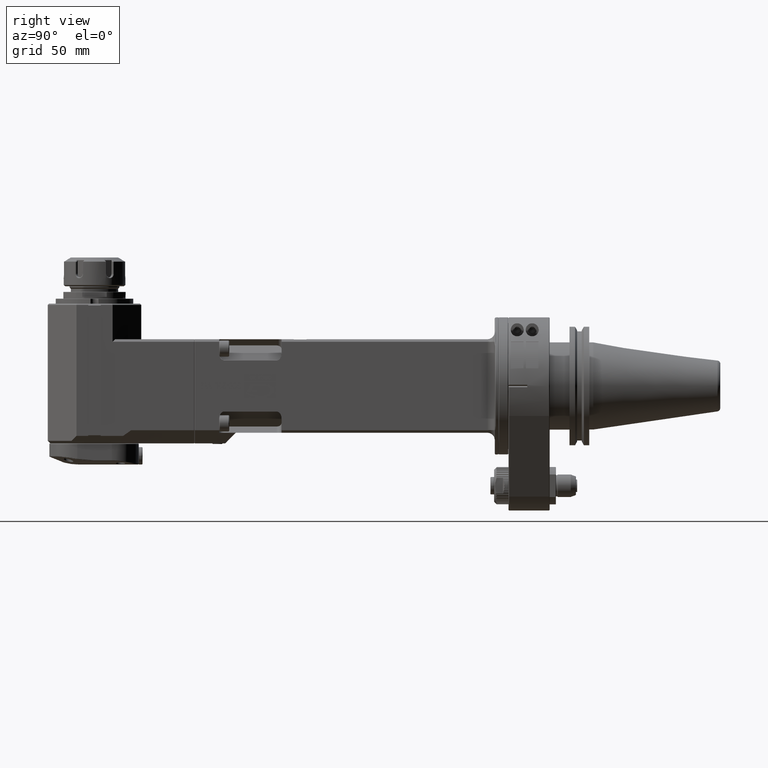
[diagram: clean part render]
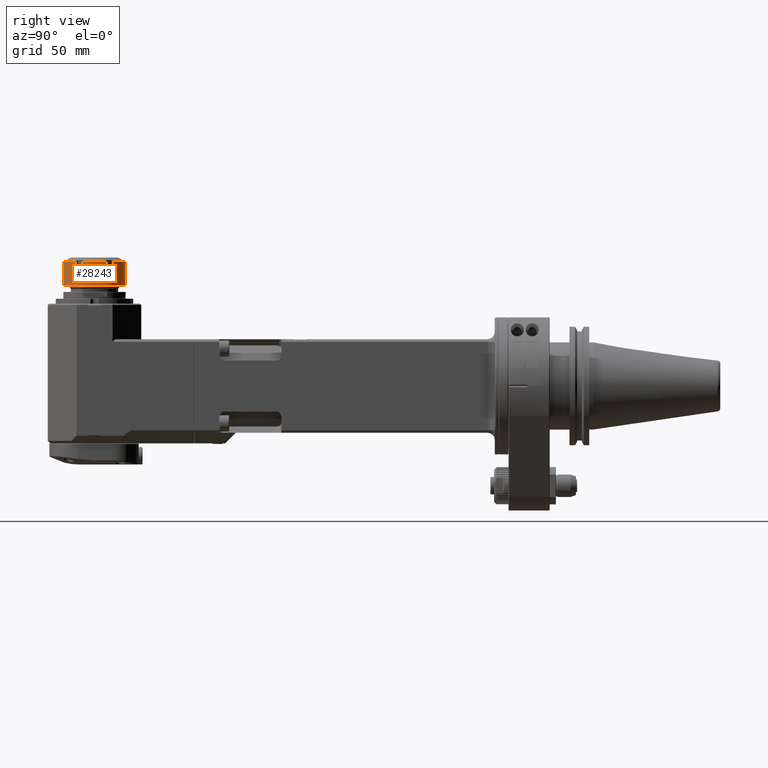
[diagram: same view with one face highlighted and labeled with its STEP entity id]
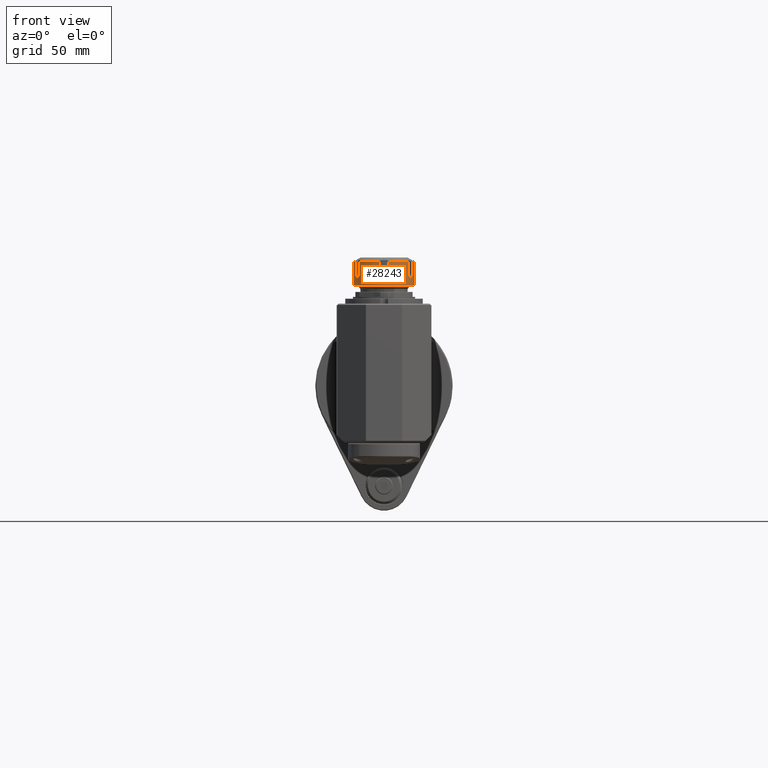
[diagram: same view with one face highlighted and labeled with its STEP entity id]
A machine part, right view. The second image highlights one B-rep face of the part: STEP entity #28243.
A second angle (front view) of the same face is appended — the face is thin or edge-on in the first view.
In plain terms, the highlighted cylindrical surface (bore or boss wall) has radius 24.75 mm, axis along (0, 0, 1).
Its self-contained STEP definition (entity closure, byte-faithful):
#1302=B_SPLINE_CURVE_WITH_KNOTS('',3,(#57710,#57711,#57712,#57713,#57714,
#57715,#57716,#57717,#57718,#57719,#57720,#57721,#57722,#57723),
 .UNSPECIFIED.,.F.,.F.,(4,2,2,2,2,2,4),(1.08117991773986E-5,0.0714550031949095,
0.143731660558789,0.281933908590943,0.417914567572308,0.488154144730129,
0.556395842160567),.UNSPECIFIED.);
#1303=B_SPLINE_CURVE_WITH_KNOTS('',3,(#57728,#57729,#57730,#57731,#57732,
#57733,#57734,#57735,#57736,#57737,#57738,#57739,#57740,#57741,#57742,#57743,
#57744,#57745,#57746,#57747,#57748,#57749,#57750,#57751,#57752,#57753,#57754,
#57755,#57756,#57757),.UNSPECIFIED.,.F.,.F.,(4,2,2,2,2,2,2,2,2,2,2,2,2,
2,4),(2.31044208487752E-5,0.0750965316578001,0.153176953119631,0.205977229873932,
0.33293243219741,0.450713446640844,0.509679836159503,0.539197310397559,
0.657347117770113,0.716276687798445,0.774295064828856,0.827003187331308,
0.865929901995463,0.922680304160387,0.976571143480738),.UNSPECIFIED.);
#1304=B_SPLINE_CURVE_WITH_KNOTS('',3,(#57762,#57763,#57764,#57765,#57766,
#57767,#57768,#57769,#57770,#57771,#57772,#57773,#57774,#57775,#57776,#57777,
#57778,#57779,#57780,#57781,#57782,#57783,#57784,#57785),.UNSPECIFIED.,
 .F.,.F.,(4,2,2,2,2,2,2,2,2,2,2,4),(3.51901291948002E-5,0.0993938228027501,
0.208283318229033,0.280508259210708,0.451522319272047,0.685521907531227,
0.749119690235134,0.875507973858565,1.13004688614784,1.38136350526778,1.54080833025789,
1.69311672722739),.UNSPECIFIED.);
#1305=B_SPLINE_CURVE_WITH_KNOTS('',3,(#57790,#57791,#57792,#57793,#57794,
#57795,#57796,#57797,#57798,#57799,#57800,#57801,#57802,#57803),
 .UNSPECIFIED.,.F.,.F.,(4,2,2,2,2,2,4),(1.61317725231968E-5,0.0679565794477623,
0.137885094723914,0.27343630561683,0.411126489499445,0.482978196946605,
0.553956708058748),.UNSPECIFIED.);
#1306=B_SPLINE_CURVE_WITH_KNOTS('',3,(#57810,#57811,#57812,#57813,#57814,
#57815,#57816,#57817,#57818,#57819,#57820,#57821,#57822,#57823),
 .UNSPECIFIED.,.F.,.F.,(4,2,2,2,2,2,4),(1.08117991712602E-5,0.0714550031951196,
0.143731660559478,0.281933908592442,0.417914567574454,0.488154144731115,
0.556395842138673),.UNSPECIFIED.);
#1307=B_SPLINE_CURVE_WITH_KNOTS('',3,(#57828,#57829,#57830,#57831,#57832,
#57833,#57834,#57835,#57836,#57837,#57838,#57839,#57840,#57841,#57842,#57843,
#57844,#57845,#57846,#57847,#57848,#57849,#57850,#57851,#57852,#57853,#57854,
#57855,#57856,#57857),.UNSPECIFIED.,.F.,.F.,(4,2,2,2,2,2,2,2,2,2,2,2,2,
2,4),(2.31044208594471E-5,0.075096531660213,0.153176953124476,0.205977229881311,
0.332932432217393,0.450713446708684,0.509679836254041,0.539197310505675,
0.657347117937465,0.716276687991518,0.774295065046826,0.827003187568827,
0.865929902247778,0.922680304434578,0.976571143775866),.UNSPECIFIED.);
#1308=B_SPLINE_CURVE_WITH_KNOTS('',3,(#57860,#57861,#57862,#57863,#57864,
#57865,#57866,#57867,#57868,#57869,#57870,#57871,#57872,#57873,#57874,#57875,
#57876,#57877,#57878,#57879,#57880,#57881,#57882,#57883),.UNSPECIFIED.,
 .F.,.F.,(4,2,2,2,2,2,2,2,2,2,2,4),(3.51901291982167E-5,0.0993938228012359,
0.208283318227728,0.280508259210555,0.451522319274656,0.685521907546854,
0.749119690257179,0.875507973892865,1.13004688620668,1.38136350535114,1.54080833035604,
1.69311672733968),.UNSPECIFIED.);
#1309=B_SPLINE_CURVE_WITH_KNOTS('',3,(#57887,#57888,#57889,#57890,#57891,
#57892,#57893,#57894,#57895,#57896,#57897,#57898,#57899,#57900),
 .UNSPECIFIED.,.F.,.F.,(4,2,2,2,2,2,4),(1.61317725195946E-5,0.067956579447742,
0.137885094723653,0.273436305617017,0.411126489500731,0.482978196948306,
0.553956708060517),.UNSPECIFIED.);
#2619=CIRCLE('',#30853,24.75);
#2620=CIRCLE('',#30854,24.75);
#2621=CIRCLE('',#30855,24.75);
#2622=CIRCLE('',#30856,24.75);
#2623=CIRCLE('',#30857,24.75);
#2624=CIRCLE('',#30858,24.75);
#2626=CIRCLE('',#30864,24.75);
#2627=CIRCLE('',#30865,24.75);
#3048=CYLINDRICAL_SURFACE('',#30863,24.75);
#4474=FACE_OUTER_BOUND('',#6248,.T.);
#6248=EDGE_LOOP('',(#24968,#24969,#24970,#24971,#24972,#24973,#24974,#24975,
#24976,#24977,#24978,#24979,#24980,#24981,#24982,#24983,#24984,#24985,#24986,
#24987,#24988,#24989,#24990,#24991,#24992,#24993,#24994,#24995,#24996,#24997));
#8458=LINE('',#57706,#10655);
#8459=LINE('',#57724,#10656);
#8460=LINE('',#57726,#10657);
#8461=LINE('',#57758,#10658);
#8462=LINE('',#57760,#10659);
#8463=LINE('',#57786,#10660);
#8464=LINE('',#57788,#10661);
#8465=LINE('',#57805,#10662);
#8466=LINE('',#57824,#10663);
#8467=LINE('',#57826,#10664);
#8468=LINE('',#57858,#10665);
#8469=LINE('',#57884,#10666);
#8470=LINE('',#57886,#10667);
#10655=VECTOR('',#37778,10.);
#10656=VECTOR('',#37781,10.);
#10657=VECTOR('',#37782,10.);
#10658=VECTOR('',#37783,10.);
#10659=VECTOR('',#37784,10.);
#10660=VECTOR('',#37785,10.);
#10661=VECTOR('',#37786,10.);
#10662=VECTOR('',#37787,24.75);
#10663=VECTOR('',#37792,10.);
#10664=VECTOR('',#37793,10.);
#10665=VECTOR('',#37794,10.);
#10666=VECTOR('',#37795,10.);
#10667=VECTOR('',#37796,10.);
#13231=VERTEX_POINT('',#57371);
#13232=VERTEX_POINT('',#57375);
#13237=VERTEX_POINT('',#57404);
#13238=VERTEX_POINT('',#57408);
#13243=VERTEX_POINT('',#57439);
#13244=VERTEX_POINT('',#57443);
#13250=VERTEX_POINT('',#57477);
#13251=VERTEX_POINT('',#57481);
#13256=VERTEX_POINT('',#57510);
#13257=VERTEX_POINT('',#57514);
#13262=VERTEX_POINT('',#57545);
#13263=VERTEX_POINT('',#57549);
#13275=VERTEX_POINT('',#57704);
#13276=VERTEX_POINT('',#57708);
#13277=VERTEX_POINT('',#57709);
#13278=VERTEX_POINT('',#57725);
#13279=VERTEX_POINT('',#57727);
#13280=VERTEX_POINT('',#57759);
#13281=VERTEX_POINT('',#57761);
#13282=VERTEX_POINT('',#57787);
#13283=VERTEX_POINT('',#57789);
#13284=VERTEX_POINT('',#57804);
#13285=VERTEX_POINT('',#57806);
#13286=VERTEX_POINT('',#57809);
#13287=VERTEX_POINT('',#57825);
#13288=VERTEX_POINT('',#57827);
#13289=VERTEX_POINT('',#57859);
#13290=VERTEX_POINT('',#57885);
#17190=EDGE_CURVE('',#13231,#13232,#2619,.T.);
#17196=EDGE_CURVE('',#13237,#13238,#2620,.T.);
#17202=EDGE_CURVE('',#13243,#13244,#2621,.T.);
#17209=EDGE_CURVE('',#13251,#13250,#2622,.T.);
#17215=EDGE_CURVE('',#13257,#13256,#2623,.T.);
#17221=EDGE_CURVE('',#13263,#13262,#2624,.T.);
#17241=EDGE_CURVE('',#13237,#13275,#8458,.T.);
#17242=EDGE_CURVE('',#13276,#13277,#1302,.T.);
#17243=EDGE_CURVE('',#13277,#13263,#8459,.T.);
#17244=EDGE_CURVE('',#13262,#13278,#8460,.T.);
#17245=EDGE_CURVE('',#13278,#13279,#1303,.T.);
#17246=EDGE_CURVE('',#13279,#13257,#8461,.T.);
#17247=EDGE_CURVE('',#13256,#13280,#8462,.T.);
#17248=EDGE_CURVE('',#13280,#13281,#1304,.T.);
#17249=EDGE_CURVE('',#13281,#13251,#8463,.T.);
#17250=EDGE_CURVE('',#13250,#13282,#8464,.T.);
#17251=EDGE_CURVE('',#13282,#13283,#1305,.T.);
#17252=EDGE_CURVE('',#13283,#13284,#8465,.T.);
#17253=EDGE_CURVE('',#13284,#13285,#2626,.T.);
#17254=EDGE_CURVE('',#13285,#13284,#2627,.T.);
#17255=EDGE_CURVE('',#13283,#13286,#1306,.T.);
#17256=EDGE_CURVE('',#13286,#13244,#8466,.T.);
#17257=EDGE_CURVE('',#13243,#13287,#8467,.T.);
#17258=EDGE_CURVE('',#13287,#13288,#1307,.T.);
#17259=EDGE_CURVE('',#13288,#13238,#8468,.T.);
#17260=EDGE_CURVE('',#13275,#13289,#1308,.T.);
#17261=EDGE_CURVE('',#13289,#13232,#8469,.T.);
#17262=EDGE_CURVE('',#13231,#13290,#8470,.T.);
#17263=EDGE_CURVE('',#13290,#13276,#1309,.T.);
#24968=ORIENTED_EDGE('',*,*,#17242,.T.);
#24969=ORIENTED_EDGE('',*,*,#17243,.T.);
#24970=ORIENTED_EDGE('',*,*,#17221,.T.);
#24971=ORIENTED_EDGE('',*,*,#17244,.T.);
#24972=ORIENTED_EDGE('',*,*,#17245,.T.);
#24973=ORIENTED_EDGE('',*,*,#17246,.T.);
#24974=ORIENTED_EDGE('',*,*,#17215,.T.);
#24975=ORIENTED_EDGE('',*,*,#17247,.T.);
#24976=ORIENTED_EDGE('',*,*,#17248,.T.);
#24977=ORIENTED_EDGE('',*,*,#17249,.T.);
#24978=ORIENTED_EDGE('',*,*,#17209,.T.);
#24979=ORIENTED_EDGE('',*,*,#17250,.T.);
#24980=ORIENTED_EDGE('',*,*,#17251,.T.);
#24981=ORIENTED_EDGE('',*,*,#17252,.T.);
#24982=ORIENTED_EDGE('',*,*,#17253,.T.);
#24983=ORIENTED_EDGE('',*,*,#17254,.T.);
#24984=ORIENTED_EDGE('',*,*,#17252,.F.);
#24985=ORIENTED_EDGE('',*,*,#17255,.T.);
#24986=ORIENTED_EDGE('',*,*,#17256,.T.);
#24987=ORIENTED_EDGE('',*,*,#17202,.F.);
#24988=ORIENTED_EDGE('',*,*,#17257,.T.);
#24989=ORIENTED_EDGE('',*,*,#17258,.T.);
#24990=ORIENTED_EDGE('',*,*,#17259,.T.);
#24991=ORIENTED_EDGE('',*,*,#17196,.F.);
#24992=ORIENTED_EDGE('',*,*,#17241,.T.);
#24993=ORIENTED_EDGE('',*,*,#17260,.T.);
#24994=ORIENTED_EDGE('',*,*,#17261,.T.);
#24995=ORIENTED_EDGE('',*,*,#17190,.F.);
#24996=ORIENTED_EDGE('',*,*,#17262,.T.);
#24997=ORIENTED_EDGE('',*,*,#17263,.T.);
#28243=ADVANCED_FACE('',(#4474),#3048,.T.);
#30853=AXIS2_PLACEMENT_3D('',#57376,#37752,#37753);
#30854=AXIS2_PLACEMENT_3D('',#57409,#37754,#37755);
#30855=AXIS2_PLACEMENT_3D('',#57444,#37756,#37757);
#30856=AXIS2_PLACEMENT_3D('',#57482,#37758,#37759);
#30857=AXIS2_PLACEMENT_3D('',#57515,#37760,#37761);
#30858=AXIS2_PLACEMENT_3D('',#57550,#37762,#37763);
#30863=AXIS2_PLACEMENT_3D('',#57707,#37779,#37780);
#30864=AXIS2_PLACEMENT_3D('',#57807,#37788,#37789);
#30865=AXIS2_PLACEMENT_3D('',#57808,#37790,#37791);
#37752=DIRECTION('center_axis',(0.,0.,1.));
#37753=DIRECTION('ref_axis',(0.1443298969072,-0.989529626064201,0.));
#37754=DIRECTION('center_axis',(0.,0.,1.));
#37755=DIRECTION('ref_axis',(0.929122742422504,-0.369771455784902,0.));
#37756=DIRECTION('center_axis',(0.,0.,1.));
#37757=DIRECTION('ref_axis',(0.784792845515321,0.619758170279316,0.));
#37758=DIRECTION('center_axis',(0.,0.,-1.));
#37759=DIRECTION('ref_axis',(-0.784792845515321,0.619758170279316,0.));
#37760=DIRECTION('center_axis',(0.,0.,-1.));
#37761=DIRECTION('ref_axis',(-0.929122742422504,-0.369771455784902,0.));
#37762=DIRECTION('center_axis',(0.,0.,-1.));
#37763=DIRECTION('ref_axis',(-0.1443298969072,-0.989529626064201,0.));
#37778=DIRECTION('',(0.,0.,-1.));
#37779=DIRECTION('center_axis',(0.,0.,1.));
#37780=DIRECTION('ref_axis',(0.,-1.,0.));
#37781=DIRECTION('',(0.,0.,1.));
#37782=DIRECTION('',(0.,0.,-1.));
#37783=DIRECTION('',(0.,0.,1.));
#37784=DIRECTION('',(0.,0.,-1.));
#37785=DIRECTION('',(0.,0.,1.));
#37786=DIRECTION('',(0.,0.,-1.));
#37787=DIRECTION('',(0.,0.,-1.));
#37788=DIRECTION('center_axis',(0.,0.,1.));
#37789=DIRECTION('ref_axis',(0.,-1.,0.));
#37790=DIRECTION('center_axis',(0.,0.,1.));
#37791=DIRECTION('ref_axis',(0.,-1.,0.));
#37792=DIRECTION('',(0.,0.,1.));
#37793=DIRECTION('',(0.,0.,-1.));
#37794=DIRECTION('',(0.,0.,1.));
#37795=DIRECTION('',(0.,0.,1.));
#37796=DIRECTION('',(0.,0.,-1.));
#57371=CARTESIAN_POINT('',(3.572164948454,-356.4908582451,99.68023595216));
#57375=CARTESIAN_POINT('',(19.4236229265,-347.3390147144,99.68023595216));
#57376=CARTESIAN_POINT('Origin',(1.302279871954E-13,-332.,99.68023595216));
#57404=CARTESIAN_POINT('',(22.99578787496,-341.1518435307,99.68023595216));
#57408=CARTESIAN_POINT('',(22.99578787496,-322.8481564693,99.68023595216));
#57409=CARTESIAN_POINT('Origin',(1.302279871954E-13,-332.,99.68023595216));
#57439=CARTESIAN_POINT('',(19.4236229265,-316.6609852856,99.68023595216));
#57443=CARTESIAN_POINT('',(3.572164948454,-307.5091417549,99.68023595216));
#57444=CARTESIAN_POINT('Origin',(1.302279871954E-13,-332.,99.68023595216));
#57477=CARTESIAN_POINT('',(-3.572164948453,-307.5091417549,99.68023595216));
#57481=CARTESIAN_POINT('',(-19.4236229265,-316.6609852856,99.68023595216));
#57482=CARTESIAN_POINT('Origin',(1.302279871954E-13,-332.,99.68023595216));
#57510=CARTESIAN_POINT('',(-22.99578787496,-322.8481564693,99.68023595216));
#57514=CARTESIAN_POINT('',(-22.99578787496,-341.1518435307,99.68023595216));
#57515=CARTESIAN_POINT('Origin',(1.302279871954E-13,-332.,99.68023595216));
#57545=CARTESIAN_POINT('',(-19.4236229265,-347.3390147144,99.68023595216));
#57549=CARTESIAN_POINT('',(-3.572164948453,-356.4908582451,99.68023595216));
#57550=CARTESIAN_POINT('Origin',(1.302279871954E-13,-332.,99.68023595216));
#57704=CARTESIAN_POINT('',(22.9958353559594,-341.151346342785,89.9999999802176));
#57706=CARTESIAN_POINT('',(22.9957878749545,-341.151843530683,78.85));
#57707=CARTESIAN_POINT('Origin',(1.001639173642E-13,-332.,78.85));
#57708=CARTESIAN_POINT('',(4.09077048551162E-8,-356.749994836372,86.4998988645729));
#57709=CARTESIAN_POINT('',(-3.57230107717859,-356.490786520018,89.9999999765354));
#57710=CARTESIAN_POINT('Ctrl Pts',(1.27904173363724E-9,-356.75,86.4998741195269));
#57711=CARTESIAN_POINT('Ctrl Pts',(-0.238147247448342,-356.750000000012,
86.4996917617539));
#57712=CARTESIAN_POINT('Ctrl Pts',(-0.476358686164078,-356.746518080706,
86.5233754935354));
#57713=CARTESIAN_POINT('Ctrl Pts',(-0.946112033826261,-356.733039157211,
86.6168447559199));
#57714=CARTESIAN_POINT('Ctrl Pts',(-1.17787980703159,-356.722962491725,
86.6872318406432));
#57715=CARTESIAN_POINT('Ctrl Pts',(-1.8265448849254,-356.686195001162,86.9581456934114));
#57716=CARTESIAN_POINT('Ctrl Pts',(-2.21509727396863,-356.652866364471,
87.2165701559749));
#57717=CARTESIAN_POINT('Ctrl Pts',(-2.86356147076606,-356.585911577877,
87.8601261282976));
#57718=CARTESIAN_POINT('Ctrl Pts',(-3.12175564096027,-356.552985640143,
88.239656441005));
#57719=CARTESIAN_POINT('Ctrl Pts',(-3.39046288621223,-356.516847052128,
88.8733635618233));
#57720=CARTESIAN_POINT('Ctrl Pts',(-3.45901240875828,-356.507139533197,
89.0962004978909));
#57721=CARTESIAN_POINT('Ctrl Pts',(-3.54961237108403,-356.494178616816,
89.5466643274867));
#57722=CARTESIAN_POINT('Ctrl Pts',(-3.57264991972832,-356.49078750482,89.7736180991982));
#57723=CARTESIAN_POINT('Ctrl Pts',(-3.57241750952826,-356.490821405939,
90.0000007302981));
#57724=CARTESIAN_POINT('',(-3.57216494843059,-356.490858245092,78.85));
#57725=CARTESIAN_POINT('',(-19.4234063138344,-347.339143406793,89.9999999608877));
#57726=CARTESIAN_POINT('',(-19.4236229265042,-347.339014714413,78.85));
#57727=CARTESIAN_POINT('',(-22.9957860144654,-341.15154849336,89.9999998445667));
#57728=CARTESIAN_POINT('Ctrl Pts',(-19.4233448194365,-347.339366871721,
90.000000971234));
#57729=CARTESIAN_POINT('Ctrl Pts',(-19.4232230926321,-347.339521007268,
89.7497555850827));
#57730=CARTESIAN_POINT('Ctrl Pts',(-19.4410499002937,-347.317020213775,
89.4983411116745));
#57731=CARTESIAN_POINT('Ctrl Pts',(-19.510343523499,-347.228666146252,88.9997659685768));
#57732=CARTESIAN_POINT('Ctrl Pts',(-19.5628186825382,-347.161516174742,
88.7542234875263));
#57733=CARTESIAN_POINT('Ctrl Pts',(-19.6789638400142,-347.010223279718,
88.3580203747109));
#57734=CARTESIAN_POINT('Ctrl Pts',(-19.7329986419666,-346.939256852425,
88.2039547498999));
#57735=CARTESIAN_POINT('Ctrl Pts',(-19.9387170919902,-346.665218368565,
87.7046081564087));
#57736=CARTESIAN_POINT('Ctrl Pts',(-20.1342857509621,-346.399732842081,
87.3633948987192));
#57737=CARTESIAN_POINT('Ctrl Pts',(-20.5976659906141,-345.727816703818,
86.8320045528566));
#57738=CARTESIAN_POINT('Ctrl Pts',(-20.8388822000472,-345.360956069844,
86.6551620368418));
#57739=CARTESIAN_POINT('Ctrl Pts',(-21.200650594614,-344.772938793763,86.5217015428504));
#57740=CARTESIAN_POINT('Ctrl Pts',(-21.3204345976838,-344.57205228569,86.4995925522751));
#57741=CARTESIAN_POINT('Ctrl Pts',(-21.4961969418682,-344.267427664962,
86.5002571186184));
#57742=CARTESIAN_POINT('Ctrl Pts',(-21.5540848187904,-344.165424762359,
86.506130295426));
#57743=CARTESIAN_POINT('Ctrl Pts',(-21.8387815902382,-343.655407602523,
86.5637335986759));
#57744=CARTESIAN_POINT('Ctrl Pts',(-22.0475781315131,-343.253397700964,
86.6997928339523));
#57745=CARTESIAN_POINT('Ctrl Pts',(-22.3209697514323,-342.694841661492,
87.0263415968775));
#57746=CARTESIAN_POINT('Ctrl Pts',(-22.4048730683283,-342.517484530375,
87.1546803303411));
#57747=CARTESIAN_POINT('Ctrl Pts',(-22.5563808621424,-342.188448265942,
87.4470583207077));
#57748=CARTESIAN_POINT('Ctrl Pts',(-22.6239493106237,-342.036997416932,
87.6099854781251));
#57749=CARTESIAN_POINT('Ctrl Pts',(-22.7369350859422,-341.778157142611,
87.946503567368));
#57750=CARTESIAN_POINT('Ctrl Pts',(-22.7836325521675,-341.668473390924,
88.1171562380617));
#57751=CARTESIAN_POINT('Ctrl Pts',(-22.853480220093,-341.501938067003,88.4328297756079));
#57752=CARTESIAN_POINT('Ctrl Pts',(-22.8794951331175,-341.438992519264,
88.5724535726284));
#57753=CARTESIAN_POINT('Ctrl Pts',(-22.9336597811758,-341.306821543158,
88.9241945184097));
#57754=CARTESIAN_POINT('Ctrl Pts',(-22.9575833774998,-341.247359856623,
89.1419161492501));
#57755=CARTESIAN_POINT('Ctrl Pts',(-22.9883468680254,-341.170606872649,
89.5721531402838));
#57756=CARTESIAN_POINT('Ctrl Pts',(-22.9961690512258,-341.150885705636,
89.7869329646432));
#57757=CARTESIAN_POINT('Ctrl Pts',(-22.9959916610149,-341.151331461953,
90.0000034220081));
#57758=CARTESIAN_POINT('',(-22.9957878749767,-341.151843530627,78.85));
#57759=CARTESIAN_POINT('',(-22.9958353559593,-322.848653657215,89.9999999802176));
#57760=CARTESIAN_POINT('',(-22.9957878749543,-322.848156469317,78.85));
#57761=CARTESIAN_POINT('',(-19.4233350371712,-316.66074695291,90.0000000649561));
#57762=CARTESIAN_POINT('Ctrl Pts',(-22.9960447991811,-322.848802067814,
90.0000020853336));
#57763=CARTESIAN_POINT('Ctrl Pts',(-22.996178082255,-322.849136994843,89.6688030156113));
#57764=CARTESIAN_POINT('Ctrl Pts',(-22.9773270440874,-322.801402487156,
89.3321509675827));
#57765=CARTESIAN_POINT('Ctrl Pts',(-22.9016641010101,-322.61451139971,88.6643673251517));
#57766=CARTESIAN_POINT('Ctrl Pts',(-22.8425210721502,-322.469969989765,
88.3454045183534));
#57767=CARTESIAN_POINT('Ctrl Pts',(-22.7123898291238,-322.164994548313,
87.8631518184463));
#57768=CARTESIAN_POINT('Ctrl Pts',(-22.6516004723644,-322.025258170836,
87.6831283701204));
#57769=CARTESIAN_POINT('Ctrl Pts',(-22.421095844622,-321.511252612665,87.1350698150936));
#57770=CARTESIAN_POINT('Ctrl Pts',(-22.2403978248859,-321.135126319438,
86.906408310087));
#57771=CARTESIAN_POINT('Ctrl Pts',(-21.872750417688,-320.408333516698,86.5756541443962));
#57772=CARTESIAN_POINT('Ctrl Pts',(-21.6487355213789,-319.996630080166,
86.4997898378903));
#57773=CARTESIAN_POINT('Ctrl Pts',(-21.3743428386002,-319.521469723565,
86.5001040628752));
#57774=CARTESIAN_POINT('Ctrl Pts',(-21.3149797571974,-319.420343096254,
86.505814453349));
#57775=CARTESIAN_POINT('Ctrl Pts',(-21.1363035077777,-319.120830630804,
86.5397782107573));
#57776=CARTESIAN_POINT('Ctrl Pts',(-21.0158731050516,-318.925387392328,
86.5846679251776));
#57777=CARTESIAN_POINT('Ctrl Pts',(-20.6550163043376,-318.356860179278,
86.784876349202));
#57778=CARTESIAN_POINT('Ctrl Pts',(-20.4196160972228,-318.009460688321,
87.0043067915955));
#57779=CARTESIAN_POINT('Ctrl Pts',(-20.0005435105005,-317.416762545796,
87.5871741943388));
#57780=CARTESIAN_POINT('Ctrl Pts',(-19.8197504062864,-317.174687315972,
87.9445539786974));
#57781=CARTESIAN_POINT('Ctrl Pts',(-19.5984250064208,-316.884302082177,
88.6087926971935));
#57782=CARTESIAN_POINT('Ctrl Pts',(-19.5323782653281,-316.799543092596,
88.881390473578));
#57783=CARTESIAN_POINT('Ctrl Pts',(-19.4455380577273,-316.688622326186,
89.4380815322677));
#57784=CARTESIAN_POINT('Ctrl Pts',(-19.4230955516984,-316.660317493411,
89.7198874556212));
#57785=CARTESIAN_POINT('Ctrl Pts',(-19.4233818428211,-316.660680008946,
90.0000017690592));
#57786=CARTESIAN_POINT('',(-19.4236229265008,-316.660985285583,78.85));
#57787=CARTESIAN_POINT('',(-3.57231012327752,-307.509225290962,89.999999981954));
#57788=CARTESIAN_POINT('',(-3.5721649484259,-307.509141754907,78.85));
#57789=CARTESIAN_POINT('',(-4.09074823002179E-8,-307.250005163628,86.4998988645729));
#57790=CARTESIAN_POINT('Ctrl Pts',(-3.57246859244465,-307.509186045458,
90.0000004157754));
#57791=CARTESIAN_POINT('Ctrl Pts',(-3.57257869095221,-307.509202105498,
89.7735320375985));
#57792=CARTESIAN_POINT('Ctrl Pts',(-3.54955381850931,-307.505812891106,
89.5465329744048));
#57793=CARTESIAN_POINT('Ctrl Pts',(-3.45894693596828,-307.492851219794,
89.0959081049476));
#57794=CARTESIAN_POINT('Ctrl Pts',(-3.39044378305132,-307.483150165152,
88.8732942555023));
#57795=CARTESIAN_POINT('Ctrl Pts',(-3.12140141594954,-307.446967134032,
88.2389096559708));
#57796=CARTESIAN_POINT('Ctrl Pts',(-2.86298049623198,-307.414011952856,
87.8592126039749));
#57797=CARTESIAN_POINT('Ctrl Pts',(-2.21335046453414,-307.346970082592,
87.2151791090301));
#57798=CARTESIAN_POINT('Ctrl Pts',(-1.82426081593859,-307.31363060863,86.9568020655648));
#57799=CARTESIAN_POINT('Ctrl Pts',(-1.17559485589829,-307.276931646213,
86.6864831480485));
#57800=CARTESIAN_POINT('Ctrl Pts',(-0.9441620683474,-307.266889807372,86.6163519611429));
#57801=CARTESIAN_POINT('Ctrl Pts',(-0.475281994617921,-307.253466026812,
86.5232689513181));
#57802=CARTESIAN_POINT('Ctrl Pts',(-0.237604265567813,-307.249999999537,
86.4996863826539));
#57803=CARTESIAN_POINT('Ctrl Pts',(4.82036648791206E-8,-307.25,86.4998614263688));
#57804=CARTESIAN_POINT('',(9.71329165363103E-14,-307.25,81.00000378002));
#57805=CARTESIAN_POINT('',(9.71329165363103E-14,-307.25,78.85));
#57806=CARTESIAN_POINT('',(-24.7499999999978,-332.,81.0000037800222));
#57807=CARTESIAN_POINT('Origin',(1.032669961737E-13,-332.,81.00000378002));
#57808=CARTESIAN_POINT('Origin',(1.032669961737E-13,-332.,81.00000378002));
#57809=CARTESIAN_POINT('',(3.57230107717282,-307.509213479979,89.9999999765354));
#57810=CARTESIAN_POINT('Ctrl Pts',(-1.27882118089451E-9,-307.25,86.4998741195269));
#57811=CARTESIAN_POINT('Ctrl Pts',(0.238147247449283,-307.249999999988,
86.4996917617539));
#57812=CARTESIAN_POINT('Ctrl Pts',(0.47635868616569,-307.253481919294,86.5233754935358));
#57813=CARTESIAN_POINT('Ctrl Pts',(0.946112033826071,-307.266960842789,
86.61684475592));
#57814=CARTESIAN_POINT('Ctrl Pts',(1.17787980703164,-307.277037508275,86.6872318406432));
#57815=CARTESIAN_POINT('Ctrl Pts',(1.82654488492575,-307.313804998838,86.9581456934115));
#57816=CARTESIAN_POINT('Ctrl Pts',(2.21509727396889,-307.347133635529,87.2165701559751));
#57817=CARTESIAN_POINT('Ctrl Pts',(2.86356147076596,-307.414088422123,87.8601261282975));
#57818=CARTESIAN_POINT('Ctrl Pts',(3.12175564096114,-307.447014359857,88.2396564410058));
#57819=CARTESIAN_POINT('Ctrl Pts',(3.39046288621106,-307.483152947872,88.8733635618189));
#57820=CARTESIAN_POINT('Ctrl Pts',(3.4590124087553,-307.492860466803,89.0962004978799));
#57821=CARTESIAN_POINT('Ctrl Pts',(3.54961237106634,-307.505821383181,89.5466643273927));
#57822=CARTESIAN_POINT('Ctrl Pts',(3.57264991974538,-307.509212495183,89.773618099194));
#57823=CARTESIAN_POINT('Ctrl Pts',(3.57241750945939,-307.509178594051,90.0000007302982));
#57824=CARTESIAN_POINT('',(3.57216494843058,-307.509141754908,78.85));
#57825=CARTESIAN_POINT('',(19.4234063138345,-316.660856593207,89.9999999608877));
#57826=CARTESIAN_POINT('',(19.4236229265042,-316.660985285587,78.85));
#57827=CARTESIAN_POINT('',(22.9957860144654,-322.84845150664,89.9999998445667));
#57828=CARTESIAN_POINT('Ctrl Pts',(19.4233448194366,-316.660633128278,90.000000971234));
#57829=CARTESIAN_POINT('Ctrl Pts',(19.4232230926321,-316.660478992732,89.7497555850748));
#57830=CARTESIAN_POINT('Ctrl Pts',(19.4410499002948,-316.682979786226,89.498341111659));
#57831=CARTESIAN_POINT('Ctrl Pts',(19.5103435235057,-316.771333853756,88.9997659685433));
#57832=CARTESIAN_POINT('Ctrl Pts',(19.5628186825499,-316.838483825273,88.7542234874836));
#57833=CARTESIAN_POINT('Ctrl Pts',(19.678963840033,-316.989776720306,88.3580203746578));
#57834=CARTESIAN_POINT('Ctrl Pts',(19.7329986419888,-317.060743147604,88.2039547498417));
#57835=CARTESIAN_POINT('Ctrl Pts',(19.9387170920358,-317.334781631496,87.7046081563135));
#57836=CARTESIAN_POINT('Ctrl Pts',(20.1342857510037,-317.60026715798,87.3633948986735));
#57837=CARTESIAN_POINT('Ctrl Pts',(20.597665990593,-318.27218329615,86.8320045528637));
#57838=CARTESIAN_POINT('Ctrl Pts',(20.8388822000403,-318.639043930145,86.6551620368463));
#57839=CARTESIAN_POINT('Ctrl Pts',(21.2006505946078,-319.227061206226,86.5217015428514));
#57840=CARTESIAN_POINT('Ctrl Pts',(21.3204345976805,-319.427947714304,86.499592552275));
#57841=CARTESIAN_POINT('Ctrl Pts',(21.4961969418705,-319.732572335042,86.5002571186178));
#57842=CARTESIAN_POINT('Ctrl Pts',(21.554084818794,-319.834575237647,86.5061302954254));
#57843=CARTESIAN_POINT('Ctrl Pts',(21.8387815902579,-320.344592397512,86.5637335986769));
#57844=CARTESIAN_POINT('Ctrl Pts',(22.0475781315351,-320.746602299078,86.6997928339585));
#57845=CARTESIAN_POINT('Ctrl Pts',(22.3209697514636,-321.305158338573,87.02634159692));
#57846=CARTESIAN_POINT('Ctrl Pts',(22.40487306836,-321.482515469693,87.1546803303925));
#57847=CARTESIAN_POINT('Ctrl Pts',(22.556380862172,-321.811551734123,87.4470583207731));
#57848=CARTESIAN_POINT('Ctrl Pts',(22.6239493106519,-321.963002583131,87.6099854781967));
#57849=CARTESIAN_POINT('Ctrl Pts',(22.7369350859644,-322.22184285744,87.9465035674436));
#57850=CARTESIAN_POINT('Ctrl Pts',(22.7836325521858,-322.331526609119,88.1171562381333));
#57851=CARTESIAN_POINT('Ctrl Pts',(22.8534802201058,-322.498061933027,88.4328297756718));
#57852=CARTESIAN_POINT('Ctrl Pts',(22.8794951331278,-322.561007480761,88.5724535726869));
#57853=CARTESIAN_POINT('Ctrl Pts',(22.9336597811813,-322.693178456855,88.9241945184544));
#57854=CARTESIAN_POINT('Ctrl Pts',(22.9575833775032,-322.752640143385,89.1419161492862));
#57855=CARTESIAN_POINT('Ctrl Pts',(22.9883468680262,-322.829393127352,89.5721531403022));
#57856=CARTESIAN_POINT('Ctrl Pts',(22.996169051226,-322.849114294364,89.7869329646522));
#57857=CARTESIAN_POINT('Ctrl Pts',(22.9959916610151,-322.848668538047,90.0000034220081));
#57858=CARTESIAN_POINT('',(22.9957878749769,-322.848156469374,78.85));
#57859=CARTESIAN_POINT('',(19.4233350371712,-347.33925304709,90.0000000649562));
#57860=CARTESIAN_POINT('Ctrl Pts',(22.9960447991813,-341.151197932186,90.0000020853337));
#57861=CARTESIAN_POINT('Ctrl Pts',(22.9961780822554,-341.150863005156,89.6688030156165));
#57862=CARTESIAN_POINT('Ctrl Pts',(22.977327044088,-341.198597512843,89.3321509675857));
#57863=CARTESIAN_POINT('Ctrl Pts',(22.9016641010099,-341.385488600291,88.6643673251461));
#57864=CARTESIAN_POINT('Ctrl Pts',(22.8425210721491,-341.530030010238,88.3454045183478));
#57865=CARTESIAN_POINT('Ctrl Pts',(22.7123898291237,-341.835005451688,87.8631518184451));
#57866=CARTESIAN_POINT('Ctrl Pts',(22.6516004723643,-341.974741829165,87.6831283701193));
#57867=CARTESIAN_POINT('Ctrl Pts',(22.4210958446217,-342.488747387336,87.1350698150928));
#57868=CARTESIAN_POINT('Ctrl Pts',(22.2403978248858,-342.864873680562,86.9064083100867));
#57869=CARTESIAN_POINT('Ctrl Pts',(21.872750417681,-343.591666483317,86.5756541443894));
#57870=CARTESIAN_POINT('Ctrl Pts',(21.6487355213697,-344.003369919851,86.4997898378905));
#57871=CARTESIAN_POINT('Ctrl Pts',(21.3743428386003,-344.478530276436,86.5001040628752));
#57872=CARTESIAN_POINT('Ctrl Pts',(21.3149797571974,-344.579656903747,86.5058144533489));
#57873=CARTESIAN_POINT('Ctrl Pts',(21.1363035077781,-344.879169369195,86.5397782107571));
#57874=CARTESIAN_POINT('Ctrl Pts',(21.0158731050525,-345.074612607671,86.5846679251771));
#57875=CARTESIAN_POINT('Ctrl Pts',(20.6550163043389,-345.643139820721,86.784876349201));
#57876=CARTESIAN_POINT('Ctrl Pts',(20.4196160972243,-345.990539311678,87.004306791594));
#57877=CARTESIAN_POINT('Ctrl Pts',(20.0005435105014,-346.583237454204,87.5871741943376));
#57878=CARTESIAN_POINT('Ctrl Pts',(19.8197504062864,-346.825312684028,87.9445539786972));
#57879=CARTESIAN_POINT('Ctrl Pts',(19.5984250064205,-347.115697917824,88.608792697195));
#57880=CARTESIAN_POINT('Ctrl Pts',(19.5323782653279,-347.200456907405,88.8813904735792));
#57881=CARTESIAN_POINT('Ctrl Pts',(19.4455380577273,-347.311377673815,89.4380815322683));
#57882=CARTESIAN_POINT('Ctrl Pts',(19.4230955516985,-347.33968250659,89.7198874556214));
#57883=CARTESIAN_POINT('Ctrl Pts',(19.4233818428211,-347.339319991055,90.0000017690592));
#57884=CARTESIAN_POINT('',(19.4236229265008,-347.339014714417,78.85));
#57885=CARTESIAN_POINT('',(3.57231012327758,-356.490774709038,89.999999981954));
#57886=CARTESIAN_POINT('',(3.57216494842592,-356.490858245093,78.85));
#57887=CARTESIAN_POINT('Ctrl Pts',(3.5724685924447,-356.490813954542,90.0000004157754));
#57888=CARTESIAN_POINT('Ctrl Pts',(3.57257869095238,-356.490797894502,89.7735320375986));
#57889=CARTESIAN_POINT('Ctrl Pts',(3.54955381851016,-356.494187108894,89.5465329744062));
#57890=CARTESIAN_POINT('Ctrl Pts',(3.45894693596927,-356.507148780206,89.0959081049494));
#57891=CARTESIAN_POINT('Ctrl Pts',(3.39044378305215,-356.516849834848,88.8732942555041));
#57892=CARTESIAN_POINT('Ctrl Pts',(3.12140141595038,-356.553032865968,88.2389096559718));
#57893=CARTESIAN_POINT('Ctrl Pts',(2.86298049623178,-356.585988047144,87.859212603975));
#57894=CARTESIAN_POINT('Ctrl Pts',(2.21335046453393,-356.653029917408,87.2151791090293));
#57895=CARTESIAN_POINT('Ctrl Pts',(1.82426081593816,-356.68636939137,86.9568020655642));
#57896=CARTESIAN_POINT('Ctrl Pts',(1.1755948558971,-356.723068353787,86.686483148048));
#57897=CARTESIAN_POINT('Ctrl Pts',(0.944162068346534,-356.733110192628,
86.6163519611425));
#57898=CARTESIAN_POINT('Ctrl Pts',(0.475281994618718,-356.746533973188,
86.5232689513183));
#57899=CARTESIAN_POINT('Ctrl Pts',(0.237604265568122,-356.750000000463,
86.4996863826539));
#57900=CARTESIAN_POINT('Ctrl Pts',(-4.82034469631576E-8,-356.75,86.4998614263688));